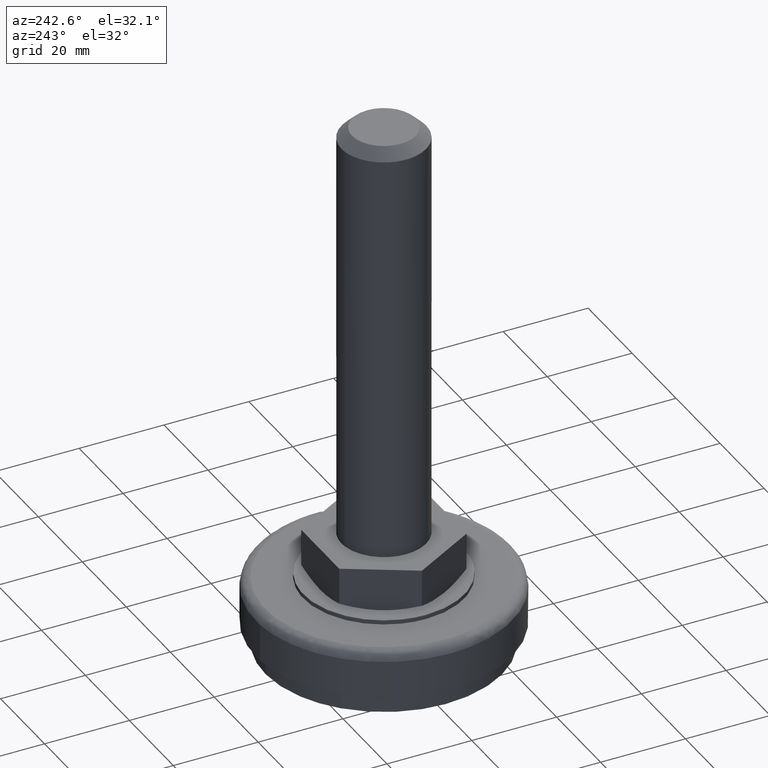
[diagram: clean part render]
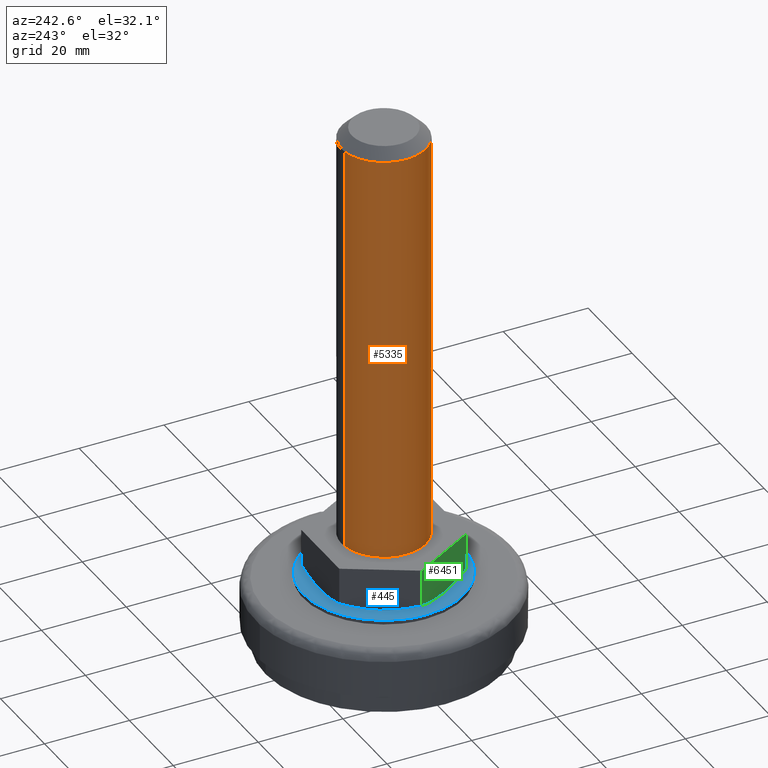
[diagram: same view with three faces highlighted in distinct colors, each labeled with its STEP entity id]
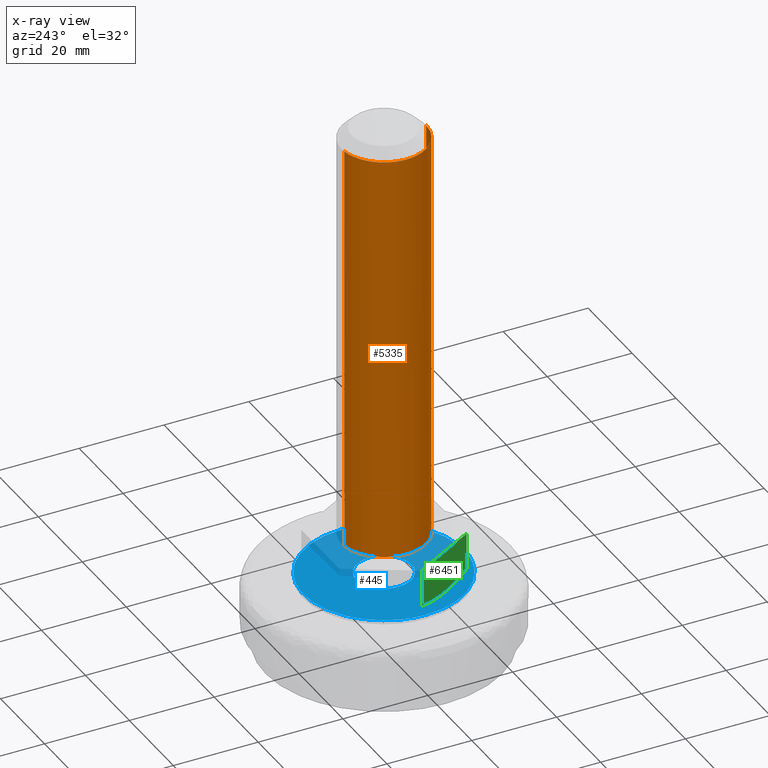
[diagram: x-ray of the same camera — body ghosted, the three highlighted faces saturated]
A machine part, auxiliary view with three faces highlighted in distinct colors.
The next image is the same camera in x-ray (body ghosted, the three faces saturated) — at least one of them is partly hidden behind the body in this view.
Their STEP definitions:

[orange] entity #5335 — the highlighted face is a freeform B-spline surface patch.
#5159=CARTESIAN_POINT('',(-1.241280020895585,9.922662138243215,124.500000000000000));
#5160=VERTEX_POINT('',#5159);
#5176=CARTESIAN_POINT('',(-10.0,0.0,124.500000000000000));
#5177=VERTEX_POINT('',#5176);
#5178=CARTESIAN_POINT('',(-10.0,0.0,124.500000000000000));
#5179=CARTESIAN_POINT('',(-10.0,8.826986001327846,124.500000000000000));
#5180=CARTESIAN_POINT('',(-1.241280020895586,9.922662138243215,124.500000000000030));
#5188=(BOUNDED_CURVE()B_SPLINE_CURVE(2,(#5178,#5179,#5180),.UNSPECIFIED.,.F.,.U.)B_SPLINE_CURVE_WITH_KNOTS((3,3),(0.500000000000000,0.728526071025992),.UNSPECIFIED.)CURVE()GEOMETRIC_REPRESENTATION_ITEM()RATIONAL_B_SPLINE_CURVE((1.0,0.732265053897623,0.954005430268301))REPRESENTATION_ITEM(''));
#5189=EDGE_CURVE('',#5177,#5160,#5188,.T.);
#5191=CARTESIAN_POINT('',(0.087265355127119,-9.999619230640459,124.500000000000000));
#5192=VERTEX_POINT('',#5191);
#5193=CARTESIAN_POINT('',(0.087265355127119,-9.999619230640459,124.500000000000000));
#5194=CARTESIAN_POINT('',(0.043633508350404,-10.0,124.499999999999960));
#5195=CARTESIAN_POINT('',(0.0,-10.0,124.500000000000000));
#5196=CARTESIAN_POINT('',(-10.000000000000002,-10.000000000000002,124.499999999999990));
#5197=CARTESIAN_POINT('',(-10.0,0.0,124.500000000000000));
#5205=(BOUNDED_CURVE()B_SPLINE_CURVE(2,(#5193,#5194,#5195,#5196,#5197),.UNSPECIFIED.,.F.,.U.)B_SPLINE_CURVE_WITH_KNOTS((3,2,3),(0.248460105659962,0.250000000000000,0.500000000000000),.UNSPECIFIED.)CURVE()GEOMETRIC_REPRESENTATION_ITEM()RATIONAL_B_SPLINE_CURVE((0.996414028088716,0.998195901560454,1.0,0.707106781186548,1.0))REPRESENTATION_ITEM(''));
#5206=EDGE_CURVE('',#5192,#5177,#5205,.T.);
#5269=CARTESIAN_POINT('',(-1.241280020798293,9.922662138255385,24.562500000000000));
#5270=CARTESIAN_POINT('',(-10.077328305024446,8.817312581332210,24.562499999999996));
#5271=CARTESIAN_POINT('',(-9.999619230641709,-0.087265354983739,24.562499999999989));
#5272=CARTESIAN_POINT('',(-9.912353875657971,-10.086884585625448,24.562499999999996));
#5273=CARTESIAN_POINT('',(0.087265354983739,-9.999619230641709,24.562499999999989));
#5274=CARTESIAN_POINT('',(-1.241280020798293,9.922662138255385,126.998437499999980));
#5275=CARTESIAN_POINT('',(-10.077328305024446,8.817312581332210,126.998437499999990));
#5276=CARTESIAN_POINT('',(-9.999619230641709,-0.087265354983739,126.998437499999990));
#5277=CARTESIAN_POINT('',(-9.912353875657971,-10.086884585625448,126.998437499999990));
#5278=CARTESIAN_POINT('',(0.087265354983739,-9.999619230641709,126.998437499999990));
#5286=(BOUNDED_SURFACE()B_SPLINE_SURFACE(2,1,((#5269,#5274),(#5270,#5275),(#5271,#5276),(#5272,#5277),(#5273,#5278)),.UNSPECIFIED.,.F.,.F.,.U.)B_SPLINE_SURFACE_WITH_KNOTS((3,2,3),(2,2),(0.0,15.243059095329890,31.811601590253691),(0.0,102.435937499999990),.UNSPECIFIED.)GEOMETRIC_REPRESENTATION_ITEM()RATIONAL_B_SPLINE_SURFACE(((0.956886118190660,0.956886118190660),(0.730538238691624,0.730538238691624),(1.0,1.0),(0.707106781186548,0.707106781186548),(1.0,1.0)))REPRESENTATION_ITEM('')SURFACE());
#5287=CARTESIAN_POINT('',(-1.241280020946220,9.922662138236882,27.0));
#5288=VERTEX_POINT('',#5287);
#5289=CARTESIAN_POINT('',(-10.0,0.0,27.0));
#5290=VERTEX_POINT('',#5289);
#5291=CARTESIAN_POINT('',(-1.241280020946220,9.922662138236882,26.999999999999996));
#5292=CARTESIAN_POINT('',(-10.0,8.826986001237051,27.000000000000004));
#5293=CARTESIAN_POINT('',(-10.0,0.0,27.0));
#5301=(BOUNDED_CURVE()B_SPLINE_CURVE(2,(#5291,#5292,#5293),.UNSPECIFIED.,.F.,.U.)B_SPLINE_CURVE_WITH_KNOTS((3,3),(0.271473928975729,0.500000000000000),.UNSPECIFIED.)CURVE()GEOMETRIC_REPRESENTATION_ITEM()RATIONAL_B_SPLINE_CURVE((0.954005430264961,0.732265053899639,1.0))REPRESENTATION_ITEM(''));
#5302=EDGE_CURVE('',#5288,#5290,#5301,.T.);
#5303=ORIENTED_EDGE('',*,*,#5302,.T.);
#5304=CARTESIAN_POINT('',(0.087265355144223,-9.999619230640310,27.0));
#5305=VERTEX_POINT('',#5304);
#5306=CARTESIAN_POINT('',(-10.0,0.0,27.0));
#5307=CARTESIAN_POINT('',(-10.000000000000002,-10.000000000000002,27.000000000000011));
#5308=CARTESIAN_POINT('',(0.0,-10.0,27.0));
#5309=CARTESIAN_POINT('',(0.043633508367480,-10.000000000000002,27.000000000000007));
#5310=CARTESIAN_POINT('',(0.087265355144223,-9.999619230640310,26.999999999999996));
#5318=(BOUNDED_CURVE()B_SPLINE_CURVE(2,(#5306,#5307,#5308,#5309,#5310),.UNSPECIFIED.,.F.,.U.)B_SPLINE_CURVE_WITH_KNOTS((3,2,3),(0.500000000000000,0.750000000000000,0.751539894340640),.UNSPECIFIED.)CURVE()GEOMETRIC_REPRESENTATION_ITEM()RATIONAL_B_SPLINE_CURVE((1.0,0.707106781186548,1.0,0.998195901559749,0.996414028087323))REPRESENTATION_ITEM(''));
#5319=EDGE_CURVE('',#5290,#5305,#5318,.T.);
#5320=ORIENTED_EDGE('',*,*,#5319,.T.);
#5321=CARTESIAN_POINT('',(0.087265355144223,-9.999619230640310,27.0));
#5322=CARTESIAN_POINT('',(0.087265355127119,-9.999619230640459,124.500000000000000));
#5323=QUASI_UNIFORM_CURVE('',1,(#5321,#5322),.UNSPECIFIED.,.F.,.U.);
#5324=EDGE_CURVE('',#5305,#5192,#5323,.T.);
#5325=ORIENTED_EDGE('',*,*,#5324,.T.);
#5326=ORIENTED_EDGE('',*,*,#5206,.T.);
#5327=ORIENTED_EDGE('',*,*,#5189,.T.);
#5328=CARTESIAN_POINT('',(-1.241280020946220,9.922662138236882,27.0));
#5329=CARTESIAN_POINT('',(-1.241280020895585,9.922662138243215,124.500000000000000));
#5330=QUASI_UNIFORM_CURVE('',1,(#5328,#5329),.UNSPECIFIED.,.F.,.U.);
#5331=EDGE_CURVE('',#5288,#5160,#5330,.T.);
#5332=ORIENTED_EDGE('',*,*,#5331,.F.);
#5333=EDGE_LOOP('',(#5303,#5320,#5325,#5326,#5327,#5332));
#5334=FACE_OUTER_BOUND('',#5333,.T.);
#5335=ADVANCED_FACE('',(#5334),#5286,.T.);

[blue] entity #445 — the highlighted face is a freeform B-spline surface patch.
#70=CARTESIAN_POINT('',(-2.242621861093311,-18.867184400098409,17.000000000005191));
#71=VERTEX_POINT('',#70);
#72=CARTESIAN_POINT('',(19.0,0.0,17.0));
#73=VERTEX_POINT('',#72);
#74=CARTESIAN_POINT('',(-2.242621861093312,-18.867184400098417,17.000000000005191));
#75=CARTESIAN_POINT('',(-1.125243823533042,-19.000000000000007,16.999999999999996));
#76=CARTESIAN_POINT('',(0.0,-19.0,17.0));
#77=CARTESIAN_POINT('',(18.999999999999993,-18.999999999999993,17.000000000000004));
#78=CARTESIAN_POINT('',(19.0,0.0,17.0));
#86=(BOUNDED_CURVE()B_SPLINE_CURVE(2,(#74,#75,#76,#77,#78),.UNSPECIFIED.,.F.,.U.)B_SPLINE_CURVE_WITH_KNOTS((3,2,3),(0.229562729677464,0.250000000000000,0.500000000000000),.UNSPECIFIED.)CURVE()GEOMETRIC_REPRESENTATION_ITEM()RATIONAL_B_SPLINE_CURVE((0.956027256276152,0.976056248445888,1.0,0.707106781186548,1.0))REPRESENTATION_ITEM(''));
#87=EDGE_CURVE('',#71,#73,#86,.T.);
#128=CARTESIAN_POINT('',(1.159922251238899,18.964561170010779,17.0));
#129=VERTEX_POINT('',#128);
#135=CARTESIAN_POINT('',(19.0,0.0,17.0));
#136=CARTESIAN_POINT('',(19.000000000000007,17.873415271063600,17.000000000000004));
#137=CARTESIAN_POINT('',(1.159922251238899,18.964561170010779,16.999999999999996));
#145=(BOUNDED_CURVE()B_SPLINE_CURVE(2,(#135,#136,#137),.UNSPECIFIED.,.F.,.U.)B_SPLINE_CURVE_WITH_KNOTS((3,3),(0.500000000000000,0.739332962240575),.UNSPECIFIED.)CURVE()GEOMETRIC_REPRESENTATION_ITEM()RATIONAL_B_SPLINE_CURVE((1.0,0.719603993284798,0.976072041670215))REPRESENTATION_ITEM(''));
#146=EDGE_CURVE('',#73,#129,#145,.T.);
#173=CARTESIAN_POINT('',(-19.0,0.0,17.0));
#174=VERTEX_POINT('',#173);
#175=CARTESIAN_POINT('',(-19.0,0.0,17.0));
#176=CARTESIAN_POINT('',(-19.000000000000004,-16.875341751424852,17.000000000000004));
#177=CARTESIAN_POINT('',(-2.242621861093312,-18.867184400098417,17.000000000005191));
#185=(BOUNDED_CURVE()B_SPLINE_CURVE(2,(#175,#176,#177),.UNSPECIFIED.,.F.,.U.)B_SPLINE_CURVE_WITH_KNOTS((3,3),(0.0,0.229562729677464),.UNSPECIFIED.)CURVE()GEOMETRIC_REPRESENTATION_ITEM()RATIONAL_B_SPLINE_CURVE((1.0,0.731050532740660,0.956027256276152))REPRESENTATION_ITEM(''));
#186=EDGE_CURVE('',#174,#71,#185,.T.);
#188=CARTESIAN_POINT('',(1.159922251238899,18.964561170010782,17.0));
#189=CARTESIAN_POINT('',(0.580502502750022,19.000000000000004,16.999999999999996));
#190=CARTESIAN_POINT('',(0.0,19.0,17.0));
#191=CARTESIAN_POINT('',(-18.999999999999993,18.999999999999993,17.000000000000004));
#192=CARTESIAN_POINT('',(-19.0,0.0,17.0));
#200=(BOUNDED_CURVE()B_SPLINE_CURVE(2,(#188,#189,#190,#191,#192),.UNSPECIFIED.,.F.,.U.)B_SPLINE_CURVE_WITH_KNOTS((3,2,3),(0.739332962240574,0.750000000000000,1.0),.UNSPECIFIED.)CURVE()GEOMETRIC_REPRESENTATION_ITEM()RATIONAL_B_SPLINE_CURVE((0.976072041670214,0.987502787901748,1.0,0.707106781186548,1.0))REPRESENTATION_ITEM(''));
#201=EDGE_CURVE('',#129,#174,#200,.T.);
#264=CARTESIAN_POINT('',(-0.767222525480639,-6.454561921338667,17.0));
#265=VERTEX_POINT('',#264);
#266=CARTESIAN_POINT('',(6.500000000000000,0.0,17.0));
#267=VERTEX_POINT('',#266);
#268=CARTESIAN_POINT('',(-0.767222525480639,-6.454561921338667,17.000000000000004));
#269=CARTESIAN_POINT('',(-0.384956777951362,-6.500000000000000,17.000000000000004));
#270=CARTESIAN_POINT('',(0.0,-6.500000000000000,17.0));
#271=CARTESIAN_POINT('',(6.500000000000000,-6.500000000000000,17.000000000000007));
#272=CARTESIAN_POINT('',(6.500000000000000,0.0,17.0));
#280=(BOUNDED_CURVE()B_SPLINE_CURVE(2,(#268,#269,#270,#271,#272),.UNSPECIFIED.,.F.,.U.)B_SPLINE_CURVE_WITH_KNOTS((3,2,3),(0.229562473504558,0.250000000000000,0.500000000000000),.UNSPECIFIED.)CURVE()GEOMETRIC_REPRESENTATION_ITEM()RATIONAL_B_SPLINE_CURVE((0.956026754166156,0.976055948320659,1.0,0.707106781186547,1.0))REPRESENTATION_ITEM(''));
#281=EDGE_CURVE('',#265,#267,#280,.T.);
#283=CARTESIAN_POINT('',(0.396803914648029,6.487876898738531,17.000000000002220));
#284=VERTEX_POINT('',#283);
#285=CARTESIAN_POINT('',(6.500000000000000,0.0,17.0));
#286=CARTESIAN_POINT('',(6.500000000000001,6.114600380662856,17.000000000000004));
#287=CARTESIAN_POINT('',(0.396803914648029,6.487876898738531,17.000000000002228));
#295=(BOUNDED_CURVE()B_SPLINE_CURVE(2,(#285,#286,#287),.UNSPECIFIED.,.F.,.U.)B_SPLINE_CURVE_WITH_KNOTS((3,3),(0.500000000000000,0.739333270543095),.UNSPECIFIED.)CURVE()GEOMETRIC_REPRESENTATION_ITEM()RATIONAL_B_SPLINE_CURVE((1.0,0.719603632085929,0.976072702422093))REPRESENTATION_ITEM(''));
#296=EDGE_CURVE('',#267,#284,#295,.T.);
#363=CARTESIAN_POINT('',(-6.500000000000000,0.0,17.0));
#364=VERTEX_POINT('',#363);
#365=CARTESIAN_POINT('',(-6.500000000000000,0.0,17.0));
#366=CARTESIAN_POINT('',(-6.500000000000000,-5.773134418302506,17.0));
#367=CARTESIAN_POINT('',(-0.767222525480639,-6.454561921338667,17.000000000000004));
#375=(BOUNDED_CURVE()B_SPLINE_CURVE(2,(#365,#366,#367),.UNSPECIFIED.,.F.,.U.)B_SPLINE_CURVE_WITH_KNOTS((3,3),(0.0,0.229562473504558),.UNSPECIFIED.)CURVE()GEOMETRIC_REPRESENTATION_ITEM()RATIONAL_B_SPLINE_CURVE((1.0,0.731050832865889,0.956026754166156))REPRESENTATION_ITEM(''));
#376=EDGE_CURVE('',#364,#265,#375,.T.);
#410=CARTESIAN_POINT('',(0.396803914648029,6.487876898738531,17.000000000002228));
#411=CARTESIAN_POINT('',(0.198587149025469,6.500000000000000,17.0));
#412=CARTESIAN_POINT('',(0.0,6.500000000000000,17.0));
#413=CARTESIAN_POINT('',(-6.500000000000000,6.500000000000000,17.000000000000007));
#414=CARTESIAN_POINT('',(-6.500000000000000,0.0,17.0));
#422=(BOUNDED_CURVE()B_SPLINE_CURVE(2,(#410,#411,#412,#413,#414),.UNSPECIFIED.,.F.,.U.)B_SPLINE_CURVE_WITH_KNOTS((3,2,3),(0.739333270543095,0.750000000000000,1.0),.UNSPECIFIED.)CURVE()GEOMETRIC_REPRESENTATION_ITEM()RATIONAL_B_SPLINE_CURVE((0.976072702422093,0.987503149100619,1.0,0.707106781186547,1.0))REPRESENTATION_ITEM(''));
#423=EDGE_CURVE('',#284,#364,#422,.T.);
#428=CARTESIAN_POINT('',(-20.898099926348628,20.897637839953529,17.0));
#429=CARTESIAN_POINT('',(20.898100945588052,20.897637839953529,17.0));
#430=CARTESIAN_POINT('',(-20.898099926348628,-20.897754372994530,17.0));
#431=CARTESIAN_POINT('',(20.898100945588052,-20.897754372994530,17.0));
#432=B_SPLINE_SURFACE_WITH_KNOTS('',1,1,((#428,#430),(#429,#431)),.UNSPECIFIED.,.F.,.F.,.U.,(2,2),(2,2),(0.0,41.796200871936684),(0.0,41.795392212948052),.UNSPECIFIED.);
#433=ORIENTED_EDGE('',*,*,#186,.T.);
#434=ORIENTED_EDGE('',*,*,#87,.T.);
#435=ORIENTED_EDGE('',*,*,#146,.T.);
#436=ORIENTED_EDGE('',*,*,#201,.T.);
#437=EDGE_LOOP('',(#433,#434,#435,#436));
#438=FACE_OUTER_BOUND('',#437,.T.);
#439=ORIENTED_EDGE('',*,*,#296,.F.);
#440=ORIENTED_EDGE('',*,*,#281,.F.);
#441=ORIENTED_EDGE('',*,*,#376,.F.);
#442=ORIENTED_EDGE('',*,*,#423,.F.);
#443=EDGE_LOOP('',(#439,#440,#441,#442));
#444=FACE_BOUND('',#443,.T.);
#445=ADVANCED_FACE('',(#438,#444),#432,.F.);

[green] entity #6451 — the highlighted face is a freeform B-spline surface patch.
#4868=CARTESIAN_POINT('',(-8.639746000000001,-15.0,18.345671394023451));
#4869=VERTEX_POINT('',#4868);
#4894=CARTESIAN_POINT('',(-13.032687735863140,-7.391202111618559,17.001843396613818));
#4895=VERTEX_POINT('',#4894);
#4896=CARTESIAN_POINT('',(-13.032687735863140,-7.391202111618559,17.001843396613818));
#4897=CARTESIAN_POINT('',(-13.014411931020380,-7.422856308220807,17.001680640840132));
#4898=CARTESIAN_POINT('',(-12.996130750472460,-7.454520241890511,17.001594943532890));
#4899=CARTESIAN_POINT('',(-12.885799685170831,-7.645619253481210,17.001546577078152));
#4900=CARTESIAN_POINT('',(-12.793614645803320,-7.805288426061216,17.003465697697461));
#4901=CARTESIAN_POINT('',(-12.608961067811601,-8.125117806339880,17.011251166375370));
#4902=CARTESIAN_POINT('',(-12.516661840701410,-8.284984757892666,17.017113104138520));
#4903=CARTESIAN_POINT('',(-12.240427566274519,-8.763436558082734,17.040486526452501));
#4904=CARTESIAN_POINT('',(-12.056912984918901,-9.081293138309407,17.063800979005549));
#4905=CARTESIAN_POINT('',(-11.508210259183780,-10.031674141687230,17.155931109065520));
#4906=CARTESIAN_POINT('',(-11.144867414517440,-10.661002411966040,17.246985155436679));
#4907=CARTESIAN_POINT('',(-10.061320491401849,-12.537760743388390,17.598259512653591));
#4908=CARTESIAN_POINT('',(-9.347572270797720,-13.774008930688881,17.936281682498681));
#4909=CARTESIAN_POINT('',(-8.639746000000001,-15.0,18.345671394023451));
#4910=B_SPLINE_CURVE_WITH_KNOTS('',3,(#4896,#4897,#4898,#4899,#4900,#4901,#4902,#4903,#4904,#4905,#4906,#4907,#4908,#4909),.UNSPECIFIED.,.F.,.U.,(4,2,2,2,2,2,4),(0.493791454674778,0.500000000000000,0.531250000000000,0.562500000000000,0.625000000000000,0.750000000000000,1.0),.UNSPECIFIED.);
#4911=EDGE_CURVE('',#4895,#4869,#4910,.T.);
#4955=CARTESIAN_POINT('',(-17.300000000000001,0.0,18.339745951230949));
#4956=VERTEX_POINT('',#4955);
#4957=CARTESIAN_POINT('',(-17.300000000000001,0.0,18.339745951230949));
#4958=CARTESIAN_POINT('',(-16.592941722767868,-1.224660865429846,17.931525664538011));
#4959=CARTESIAN_POINT('',(-15.880722203566339,-2.458261264219870,17.595166574800249));
#4960=CARTESIAN_POINT('',(-14.801235094892659,-4.327987790728800,17.245981053792441));
#4961=CARTESIAN_POINT('',(-14.439541958482740,-4.954458682477336,17.155540189446288));
#4962=CARTESIAN_POINT('',(-13.730006321716210,-6.183410460508086,17.036431680644800));
#4963=CARTESIAN_POINT('',(-13.382364860527399,-6.785543136735829,17.004964920139731));
#4964=CARTESIAN_POINT('',(-13.032687735863140,-7.391202111618559,17.001843396613818));
#4965=B_SPLINE_CURVE_WITH_KNOTS('',3,(#4957,#4958,#4959,#4960,#4961,#4962,#4963,#4964),.UNSPECIFIED.,.F.,.U.,(4,2,2,4),(0.0,0.250000000000000,0.375000000000000,0.493791454674778),.UNSPECIFIED.);
#4966=EDGE_CURVE('',#4956,#4895,#4965,.T.);
#6373=CARTESIAN_POINT('',(-17.300000000000001,0.0,27.0));
#6374=VERTEX_POINT('',#6373);
#6380=CARTESIAN_POINT('',(-8.639746000000001,-15.0,27.0));
#6381=VERTEX_POINT('',#6380);
#6382=CARTESIAN_POINT('',(-8.639746000000001,-15.0,27.0));
#6383=CARTESIAN_POINT('',(-17.300000000000001,0.0,27.0));
#6384=QUASI_UNIFORM_CURVE('',1,(#6382,#6383),.UNSPECIFIED.,.F.,.U.);
#6385=EDGE_CURVE('',#6381,#6374,#6384,.T.);
#6426=CARTESIAN_POINT('',(-17.300000000000001,0.0,18.339745951230949));
#6427=CARTESIAN_POINT('',(-17.300000000000001,0.0,27.0));
#6428=QUASI_UNIFORM_CURVE('',1,(#6426,#6427),.UNSPECIFIED.,.F.,.U.);
#6429=EDGE_CURVE('',#4956,#6374,#6428,.T.);
#6435=CARTESIAN_POINT('',(-8.207166279129492,-15.749250058145821,16.502434514433158));
#6436=CARTESIAN_POINT('',(-17.732579256298290,0.749249253483108,16.502434514433158));
#6437=CARTESIAN_POINT('',(-8.207166279129492,-15.749250058145821,27.499408217723708));
#6438=CARTESIAN_POINT('',(-17.732579256298290,0.749249253483108,27.499408217723708));
#6439=B_SPLINE_SURFACE_WITH_KNOTS('',1,1,((#6435,#6437),(#6436,#6438)),.UNSPECIFIED.,.F.,.F.,.U.,(2,2),(2,2),(0.0,19.050826016775130),(0.0,10.996973703290550),.UNSPECIFIED.);
#6440=ORIENTED_EDGE('',*,*,#6429,.F.);
#6441=ORIENTED_EDGE('',*,*,#4966,.T.);
#6442=ORIENTED_EDGE('',*,*,#4911,.T.);
#6443=CARTESIAN_POINT('',(-8.639746000000001,-15.0,18.345671394023451));
#6444=CARTESIAN_POINT('',(-8.639746000000001,-15.0,27.0));
#6445=QUASI_UNIFORM_CURVE('',1,(#6443,#6444),.UNSPECIFIED.,.F.,.U.);
#6446=EDGE_CURVE('',#4869,#6381,#6445,.T.);
#6447=ORIENTED_EDGE('',*,*,#6446,.T.);
#6448=ORIENTED_EDGE('',*,*,#6385,.T.);
#6449=EDGE_LOOP('',(#6440,#6441,#6442,#6447,#6448));
#6450=FACE_OUTER_BOUND('',#6449,.T.);
#6451=ADVANCED_FACE('',(#6450),#6439,.F.);